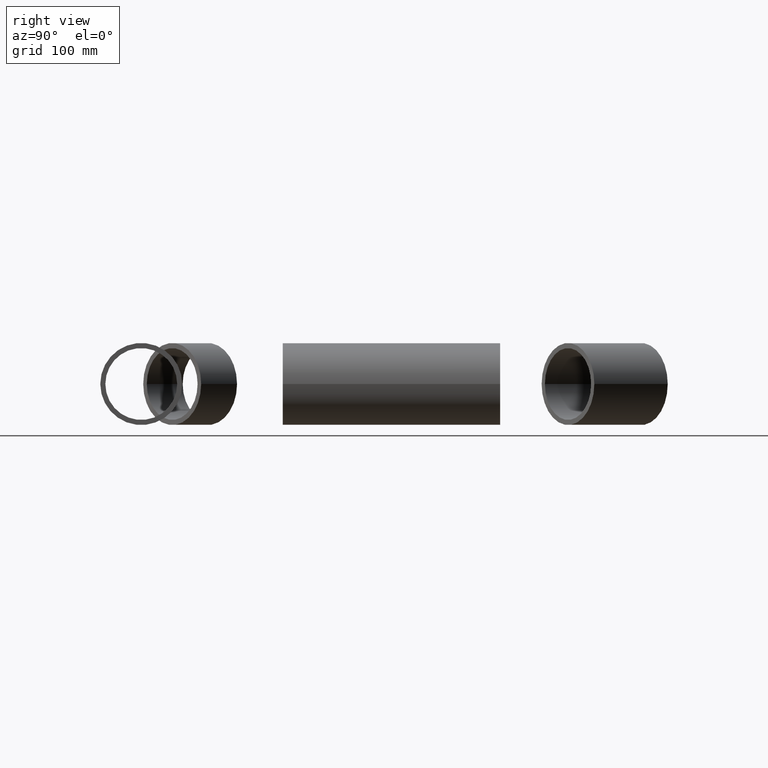
[diagram: clean part render]
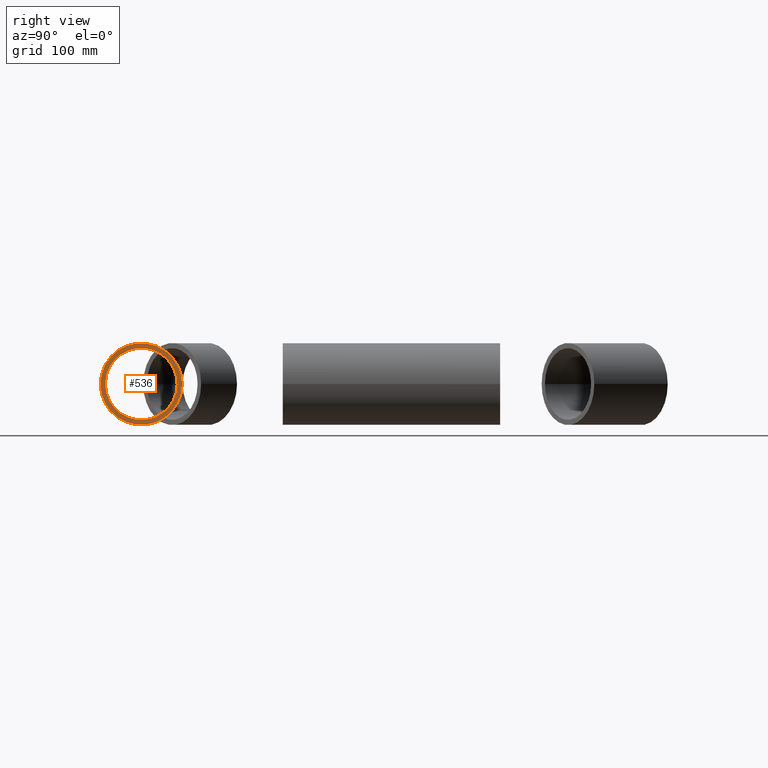
[diagram: same view with one face highlighted and labeled with its STEP entity id]
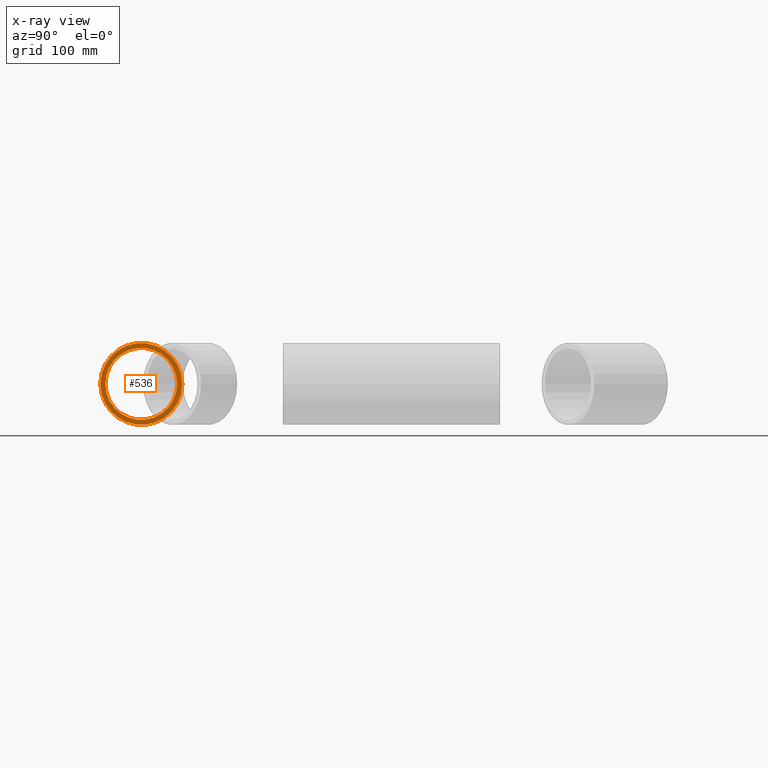
[diagram: x-ray of the same camera — body ghosted, the highlighted face saturated]
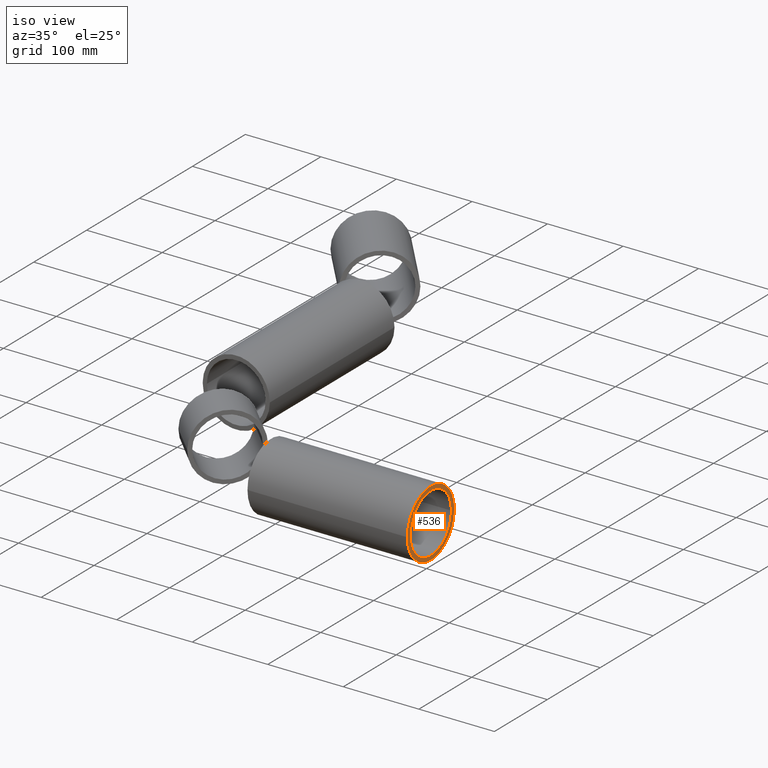
[diagram: same view with one face highlighted and labeled with its STEP entity id]
A machine part, right view. The second image highlights one B-rep face of the part: STEP entity #536.
The next image is the same camera in x-ray: the body ghosted, the highlighted face saturated — about 0% of this face is hidden behind the body in this view.
A second angle (iso view) of the same face is appended — the face is thin or edge-on in the first view.
In plain terms, the highlighted planar face has unit normal (-1, -0, 0).
Its self-contained STEP definition (entity closure, byte-faithful):
#11 = CARTESIAN_POINT ( 'NONE',  ( 105.8045635173699992, -38.95000000000000995, 4.769999282678943960E-15 ) ) ;
#17 = VERTEX_POINT ( 'NONE', #715 ) ;
#50 = DIRECTION ( 'NONE',  ( -1.000000000000000000, -1.110223024625156294E-16, 0.000000000000000000 ) ) ;
#64 = EDGE_LOOP ( 'NONE', ( #169, #171 ) ) ;
#82 = DIRECTION ( 'NONE',  ( -1.000000000000000000, -1.110223024625156294E-16, 0.000000000000000000 ) ) ;
#94 = AXIS2_PLACEMENT_3D ( 'NONE', #304, #134, #522 ) ;
#106 = CIRCLE ( 'NONE', #94, 38.95000000000003126 ) ;
#115 = CIRCLE ( 'NONE', #532, 44.45000000000002416 ) ;
#134 = DIRECTION ( 'NONE',  ( -1.000000000000000000, -1.110223024625156294E-16, 0.000000000000000000 ) ) ;
#154 = AXIS2_PLACEMENT_3D ( 'NONE', #614, #50, #608 ) ;
#169 = ORIENTED_EDGE ( 'NONE', *, *, #586, .F. ) ;
#171 = ORIENTED_EDGE ( 'NONE', *, *, #451, .F. ) ;
#204 = CIRCLE ( 'NONE', #261, 38.95000000000003126 ) ;
#218 = FACE_OUTER_BOUND ( 'NONE', #64, .T. ) ;
#227 = VERTEX_POINT ( 'NONE', #664 ) ;
#255 = CARTESIAN_POINT ( 'NONE',  ( 105.8045635173699992, 1.387778780781445676E-14, 0.000000000000000000 ) ) ;
#261 = AXIS2_PLACEMENT_3D ( 'NONE', #255, #469, #419 ) ;
#274 = PLANE ( 'NONE',  #341 ) ;
#304 = CARTESIAN_POINT ( 'NONE',  ( 105.8045635173699992, 1.387778780781445676E-14, 0.000000000000000000 ) ) ;
#308 = DIRECTION ( 'NONE',  ( 0.000000000000000000, -1.000000000000000000, 0.000000000000000000 ) ) ;
#341 = AXIS2_PLACEMENT_3D ( 'NONE', #659, #444, #666 ) ;
#344 = ORIENTED_EDGE ( 'NONE', *, *, #609, .T. ) ;
#419 = DIRECTION ( 'NONE',  ( 0.000000000000000000, -1.000000000000000000, 0.000000000000000000 ) ) ;
#444 = DIRECTION ( 'NONE',  ( -1.000000000000000000, -1.110223024625156294E-16, 0.000000000000000000 ) ) ;
#450 = CIRCLE ( 'NONE', #154, 44.45000000000002416 ) ;
#451 = EDGE_CURVE ( 'NONE', #227, #606, #450, .T. ) ;
#469 = DIRECTION ( 'NONE',  ( -1.000000000000000000, -1.110223024625156294E-16, 0.000000000000000000 ) ) ;
#477 = CARTESIAN_POINT ( 'NONE',  ( 105.8045635173699992, 1.387778780781445676E-14, 0.000000000000000000 ) ) ;
#520 = ORIENTED_EDGE ( 'NONE', *, *, #578, .T. ) ;
#522 = DIRECTION ( 'NONE',  ( 0.000000000000000000, -1.000000000000000000, 0.000000000000000000 ) ) ;
#523 = CARTESIAN_POINT ( 'NONE',  ( 105.8045635173699992, 44.45000000000002416, 0.000000000000000000 ) ) ;
#532 = AXIS2_PLACEMENT_3D ( 'NONE', #477, #82, #308 ) ;
#536 = ADVANCED_FACE ( 'NONE', ( #719, #218 ), #274, .F. ) ;
#578 = EDGE_CURVE ( 'NONE', #619, #17, #204, .T. ) ;
#586 = EDGE_CURVE ( 'NONE', #606, #227, #115, .T. ) ;
#606 = VERTEX_POINT ( 'NONE', #523 ) ;
#608 = DIRECTION ( 'NONE',  ( 0.000000000000000000, -1.000000000000000000, 0.000000000000000000 ) ) ;
#609 = EDGE_CURVE ( 'NONE', #17, #619, #106, .T. ) ;
#614 = CARTESIAN_POINT ( 'NONE',  ( 105.8045635173699992, 1.387778780781445676E-14, 0.000000000000000000 ) ) ;
#619 = VERTEX_POINT ( 'NONE', #11 ) ;
#659 = CARTESIAN_POINT ( 'NONE',  ( 105.8045635173699992, 1.387778780781445676E-14, 0.000000000000000000 ) ) ;
#664 = CARTESIAN_POINT ( 'NONE',  ( 105.8045635173699992, -44.45000000000000284, 5.443555022209987275E-15 ) ) ;
#666 = DIRECTION ( 'NONE',  ( 1.110223024625156294E-16, -1.000000000000000000, 0.000000000000000000 ) ) ;
#676 = EDGE_LOOP ( 'NONE', ( #344, #520 ) ) ;
#715 = CARTESIAN_POINT ( 'NONE',  ( 105.8045635173699992, 38.95000000000003837, 0.000000000000000000 ) ) ;
#719 = FACE_BOUND ( 'NONE', #676, .T. ) ;